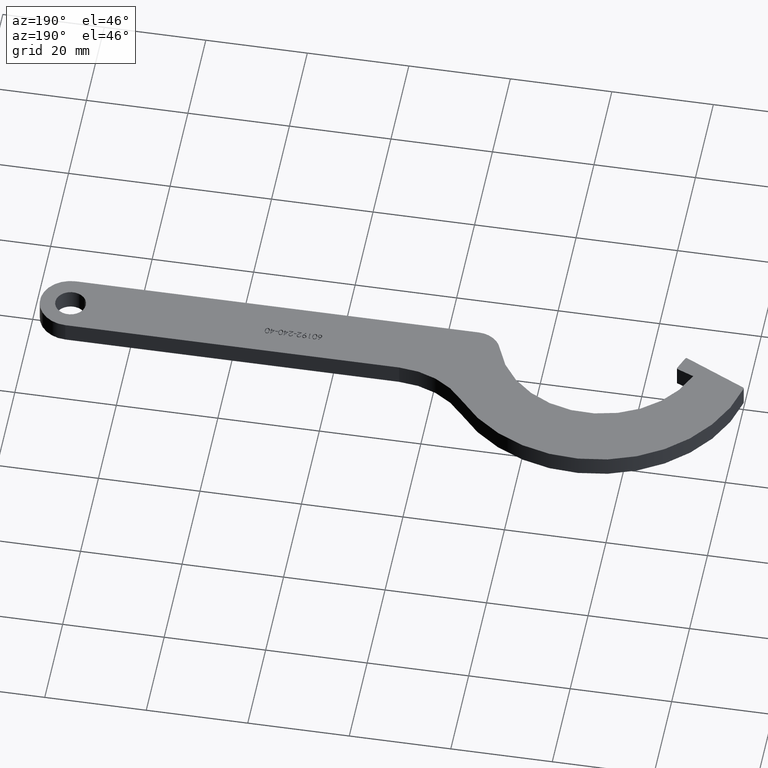
[diagram: clean part render]
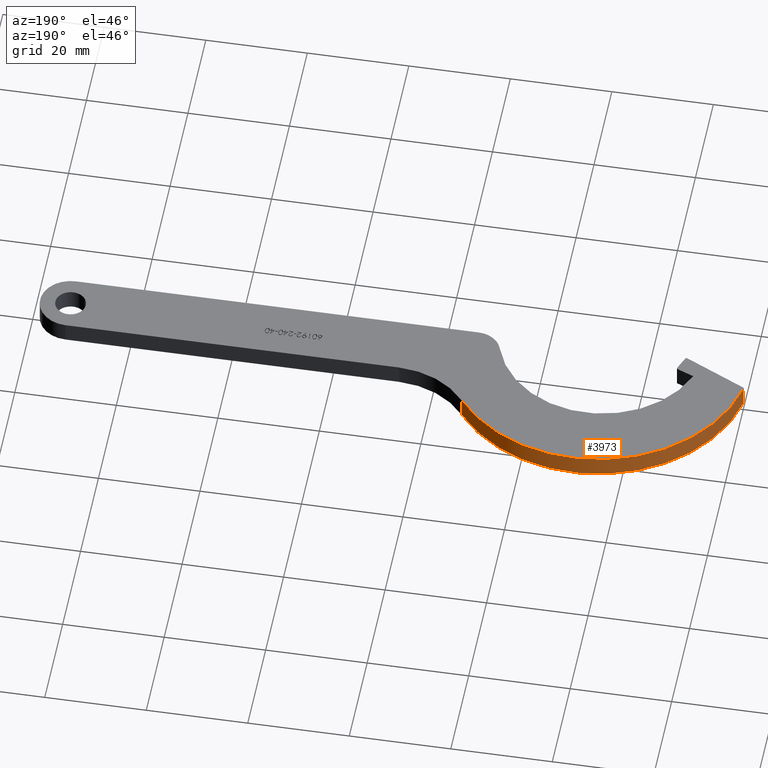
[diagram: same view with one face highlighted and labeled with its STEP entity id]
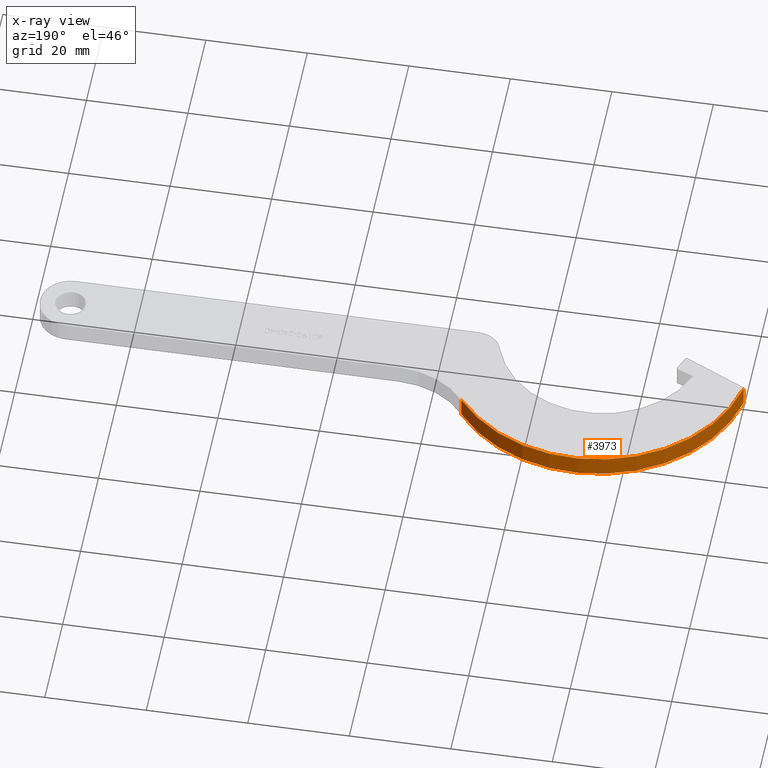
[diagram: x-ray of the same camera — body ghosted, the highlighted face saturated]
A machine part, auxiliary view. The second image highlights one B-rep face of the part: STEP entity #3973.
The next image is the same camera in x-ray: the body ghosted, the highlighted face saturated — about 0% of this face is hidden behind the body in this view.
In plain terms, the highlighted cylindrical surface (partial cylindrical patch) has radius 30.2 mm, axis along (-0, -0, -1).
Its self-contained STEP definition (entity closure, byte-faithful):
#184 = EDGE_CURVE ( 'NONE', #2398, #4175, #6756, .T. ) ;
#217 = ORIENTED_EDGE ( 'NONE', *, *, #5593, .F. ) ;
#255 = CARTESIAN_POINT ( 'NONE',  ( 53.29002992332056000, 12.82945213150964600, 4.000000000000000000 ) ) ;
#519 = DIRECTION ( 'NONE',  ( 1.000000000000000000, 0.0000000000000000000, 0.0000000000000000000 ) ) ;
#579 = VERTEX_POINT ( 'NONE', #4215 ) ;
#725 = CARTESIAN_POINT ( 'NONE',  ( 29.46254935827628100, -5.725632614253076000, 4.000000000000000000 ) ) ;
#1462 = CARTESIAN_POINT ( 'NONE',  ( 53.29002992332056000, 12.82945213150964600, 4.000000000000000000 ) ) ;
#1508 = CYLINDRICAL_SURFACE ( 'NONE', #5917, 30.19999999999999600 ) ;
#1523 = ORIENTED_EDGE ( 'NONE', *, *, #184, .T. ) ;
#2391 = CIRCLE ( 'NONE', #6896, 30.19999999999999900 ) ;
#2398 = VERTEX_POINT ( 'NONE', #255 ) ;
#2498 = CIRCLE ( 'NONE', #3195, 30.19999999999999900 ) ;
#2704 = LINE ( 'NONE', #3485, #4954 ) ;
#2807 = DIRECTION ( 'NONE',  ( -0.0000000000000000000, -0.0000000000000000000, -1.000000000000000000 ) ) ;
#3144 = DIRECTION ( 'NONE',  ( 0.0000000000000000000, 0.0000000000000000000, 1.000000000000000000 ) ) ;
#3195 = AXIS2_PLACEMENT_3D ( 'NONE', #5137, #7773, #519 ) ;
#3373 = DIRECTION ( 'NONE',  ( -1.000000000000000000, 0.0000000000000000000, 0.0000000000000000000 ) ) ;
#3485 = CARTESIAN_POINT ( 'NONE',  ( -0.1354235452859361700, 0.2743673857469560200, 4.000000000000000000 ) ) ;
#3565 = CARTESIAN_POINT ( 'NONE',  ( -0.1354235452859361700, 0.2743673857469560200, 0.0000000000000000000 ) ) ;
#3717 = ORIENTED_EDGE ( 'NONE', *, *, #5966, .F. ) ;
#3890 = VECTOR ( 'NONE', #2807, 1000.000000000000000 ) ;
#3973 = ADVANCED_FACE ( 'NONE', ( #7672 ), #1508, .T. ) ;
#4175 = VERTEX_POINT ( 'NONE', #4556 ) ;
#4215 = CARTESIAN_POINT ( 'NONE',  ( -0.1354235452859361700, 0.2743673857469560200, 4.000000000000000000 ) ) ;
#4391 = ORIENTED_EDGE ( 'NONE', *, *, #7185, .T. ) ;
#4556 = CARTESIAN_POINT ( 'NONE',  ( 53.29002992332056000, 12.82945213150964600, 0.0000000000000000000 ) ) ;
#4656 = DIRECTION ( 'NONE',  ( -0.0000000000000000000, -0.0000000000000000000, -1.000000000000000000 ) ) ;
#4954 = VECTOR ( 'NONE', #4656, 1000.000000000000000 ) ;
#5137 = CARTESIAN_POINT ( 'NONE',  ( 29.46254935827628100, -5.725632614253076000, 0.0000000000000000000 ) ) ;
#5593 = EDGE_CURVE ( 'NONE', #2398, #579, #2391, .T. ) ;
#5917 = AXIS2_PLACEMENT_3D ( 'NONE', #725, #7293, #3373 ) ;
#5966 = EDGE_CURVE ( 'NONE', #579, #8233, #2704, .T. ) ;
#6467 = DIRECTION ( 'NONE',  ( 1.000000000000000000, 0.0000000000000000000, 0.0000000000000000000 ) ) ;
#6756 = LINE ( 'NONE', #1462, #3890 ) ;
#6896 = AXIS2_PLACEMENT_3D ( 'NONE', #7736, #3144, #6467 ) ;
#7185 = EDGE_CURVE ( 'NONE', #4175, #8233, #2498, .T. ) ;
#7293 = DIRECTION ( 'NONE',  ( -0.0000000000000000000, -0.0000000000000000000, -1.000000000000000000 ) ) ;
#7338 = EDGE_LOOP ( 'NONE', ( #4391, #3717, #217, #1523 ) ) ;
#7672 = FACE_OUTER_BOUND ( 'NONE', #7338, .T. ) ;
#7736 = CARTESIAN_POINT ( 'NONE',  ( 29.46254935827628100, -5.725632614253076000, 4.000000000000000000 ) ) ;
#7773 = DIRECTION ( 'NONE',  ( 0.0000000000000000000, 0.0000000000000000000, 1.000000000000000000 ) ) ;
#8233 = VERTEX_POINT ( 'NONE', #3565 ) ;